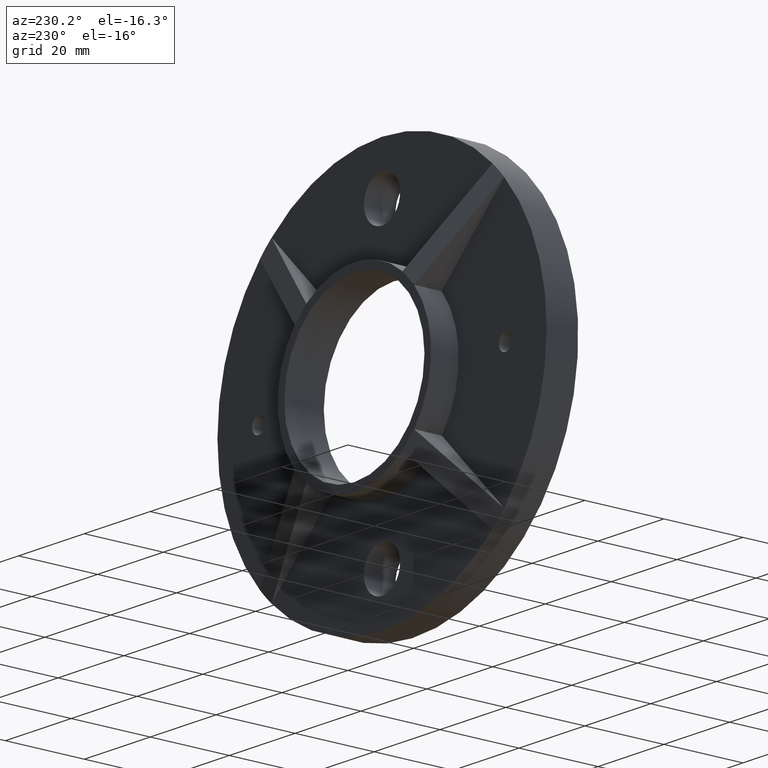
[diagram: clean part render]
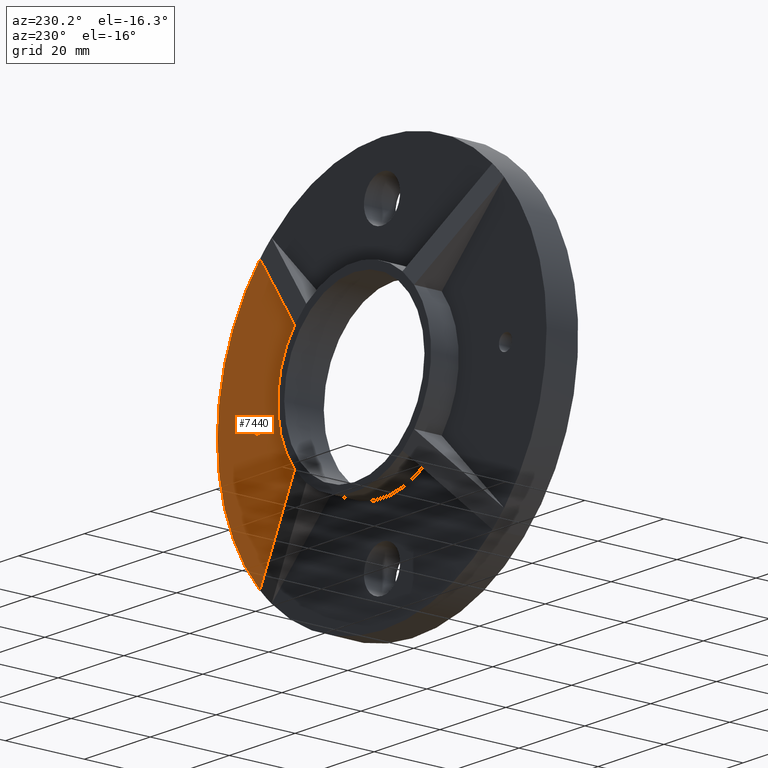
[diagram: same view with one face highlighted and labeled with its STEP entity id]
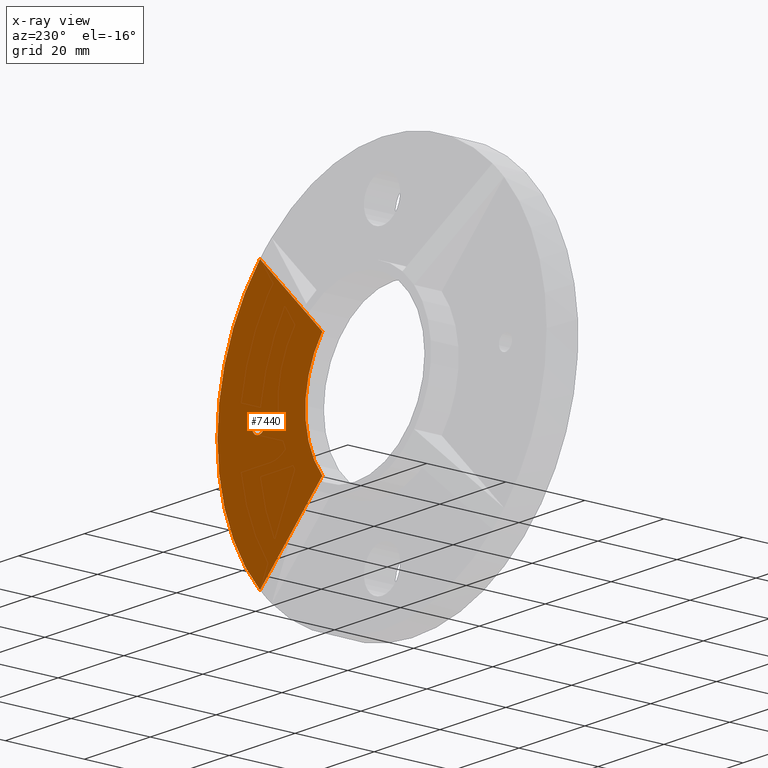
[diagram: x-ray of the same camera — body ghosted, the highlighted face saturated]
A machine part, auxiliary view. The second image highlights one B-rep face of the part: STEP entity #7440.
The next image is the same camera in x-ray: the body ghosted, the highlighted face saturated — about 0% of this face is hidden behind the body in this view.
In plain terms, the highlighted planar face has unit normal (0, 1, 0).
Its self-contained STEP definition (entity closure, byte-faithful):
#152 = DIRECTION ( 'NONE',  ( -0.7071067811865464625, -0.000000000000000000, -0.7071067811865486830 ) ) ;
#416 = VERTEX_POINT ( 'NONE', #10074 ) ;
#609 = CARTESIAN_POINT ( 'NONE',  ( 0.000000000000000000, 8.000000000000000000, 0.000000000000000000 ) ) ;
#720 = PLANE ( 'NONE',  #3448 ) ;
#739 = EDGE_LOOP ( 'NONE', ( #7629, #1293, #1562, #2690 ) ) ;
#861 = CARTESIAN_POINT ( 'NONE',  ( 37.50000000000000000, 8.000000000000000000, 0.000000000000000000 ) ) ;
#868 = CARTESIAN_POINT ( 'NONE',  ( 18.14824313652099974, 8.000000000000000000, -14.61270923058822291 ) ) ;
#1234 = AXIS2_PLACEMENT_3D ( 'NONE', #609, #1498, #6359 ) ;
#1293 = ORIENTED_EDGE ( 'NONE', *, *, #4386, .F. ) ;
#1371 = VERTEX_POINT ( 'NONE', #9775 ) ;
#1498 = DIRECTION ( 'NONE',  ( 0.000000000000000000, 1.000000000000000000, 0.000000000000000000 ) ) ;
#1505 = CARTESIAN_POINT ( 'NONE',  ( 0.000000000000000000, 8.000000000000000000, 0.000000000000000000 ) ) ;
#1524 = DIRECTION ( 'NONE',  ( 0.000000000000000000, 0.000000000000000000, 1.000000000000000000 ) ) ;
#1562 = ORIENTED_EDGE ( 'NONE', *, *, #9128, .F. ) ;
#1731 = CIRCLE ( 'NONE', #4726, 23.30000000000000071 ) ;
#1798 = VECTOR ( 'NONE', #2569, 1000.000000000000114 ) ;
#1833 = CARTESIAN_POINT ( 'NONE',  ( 37.07888418253015317, 8.000000000000000000, 33.54335027659752200 ) ) ;
#2401 = DIRECTION ( 'NONE',  ( 0.000000000000000000, 1.000000000000000000, 0.000000000000000000 ) ) ;
#2454 = CARTESIAN_POINT ( 'NONE',  ( 0.000000000000000000, 8.000000000000000000, 0.000000000000000000 ) ) ;
#2524 = FACE_OUTER_BOUND ( 'NONE', #739, .T. ) ;
#2569 = DIRECTION ( 'NONE',  ( 0.7071067811865484609, 0.000000000000000000, -0.7071067811865465735 ) ) ;
#2656 = ORIENTED_EDGE ( 'NONE', *, *, #3468, .F. ) ;
#2690 = ORIENTED_EDGE ( 'NONE', *, *, #7286, .F. ) ;
#3448 = AXIS2_PLACEMENT_3D ( 'NONE', #1505, #2401, #7249 ) ;
#3468 = EDGE_CURVE ( 'NONE', #416, #416, #9036, .T. ) ;
#4028 = VERTEX_POINT ( 'NONE', #1833 ) ;
#4116 = LINE ( 'NONE', #868, #1798 ) ;
#4223 = DIRECTION ( 'NONE',  ( 0.000000000000000000, 0.000000000000000000, -1.000000000000000000 ) ) ;
#4233 = VECTOR ( 'NONE', #152, 999.9999999999998863 ) ;
#4386 = EDGE_CURVE ( 'NONE', #10663, #1371, #4116, .T. ) ;
#4596 = FACE_BOUND ( 'NONE', #6875, .T. ) ;
#4726 = AXIS2_PLACEMENT_3D ( 'NONE', #2454, #8900, #1524 ) ;
#4731 = EDGE_CURVE ( 'NONE', #4028, #1371, #7065, .T. ) ;
#5381 = AXIS2_PLACEMENT_3D ( 'NONE', #861, #9157, #4223 ) ;
#6266 = CARTESIAN_POINT ( 'NONE',  ( 18.14824313652096421, 8.000000000000000000, 14.61270923058827265 ) ) ;
#6296 = LINE ( 'NONE', #9955, #4233 ) ;
#6359 = DIRECTION ( 'NONE',  ( 0.000000000000000000, 0.000000000000000000, 1.000000000000000000 ) ) ;
#6875 = EDGE_LOOP ( 'NONE', ( #2656 ) ) ;
#7065 = CIRCLE ( 'NONE', #1234, 50.00000000000000000 ) ;
#7249 = DIRECTION ( 'NONE',  ( 0.000000000000000000, -0.000000000000000000, 1.000000000000000000 ) ) ;
#7286 = EDGE_CURVE ( 'NONE', #4028, #10051, #6296, .T. ) ;
#7440 = ADVANCED_FACE ( 'NONE', ( #4596, #2524 ), #720, .T. ) ;
#7629 = ORIENTED_EDGE ( 'NONE', *, *, #4731, .T. ) ;
#8186 = CARTESIAN_POINT ( 'NONE',  ( 18.14824313652099974, 8.000000000000000000, -14.61270923058822291 ) ) ;
#8900 = DIRECTION ( 'NONE',  ( 0.000000000000000000, 1.000000000000000000, 0.000000000000000000 ) ) ;
#9036 = CIRCLE ( 'NONE', #5381, 2.000000000000003109 ) ;
#9128 = EDGE_CURVE ( 'NONE', #10051, #10663, #1731, .T. ) ;
#9157 = DIRECTION ( 'NONE',  ( 0.000000000000000000, 1.000000000000000000, -0.000000000000000000 ) ) ;
#9775 = CARTESIAN_POINT ( 'NONE',  ( 37.07888418253015317, 8.000000000000000000, -33.54335027659752910 ) ) ;
#9955 = CARTESIAN_POINT ( 'NONE',  ( 18.14824313652096421, 8.000000000000000000, 14.61270923058827442 ) ) ;
#10051 = VERTEX_POINT ( 'NONE', #6266 ) ;
#10074 = CARTESIAN_POINT ( 'NONE',  ( 37.50000000000000000, 8.000000000000000000, -2.000000000000003109 ) ) ;
#10663 = VERTEX_POINT ( 'NONE', #8186 ) ;